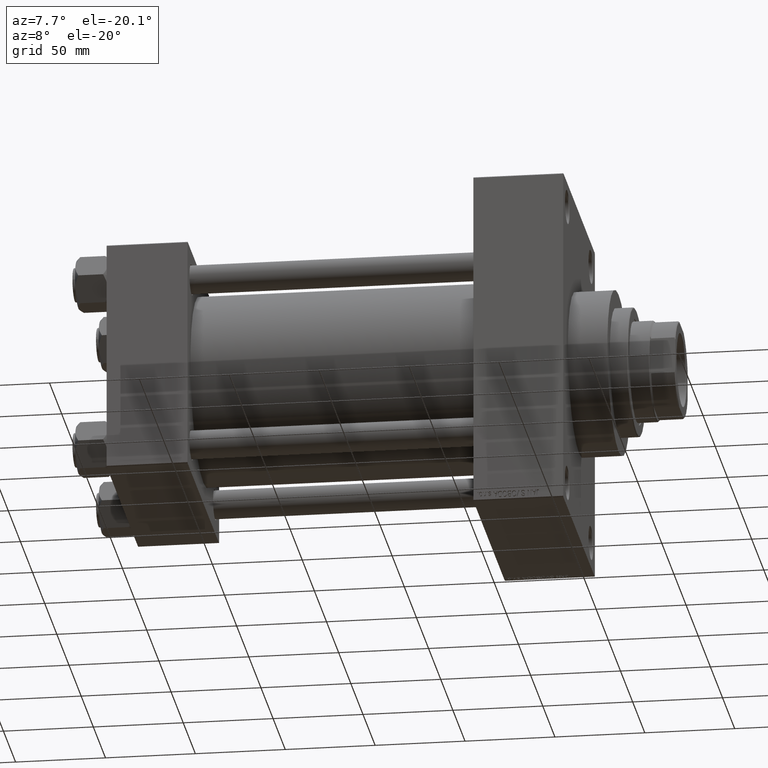
[diagram: clean part render]
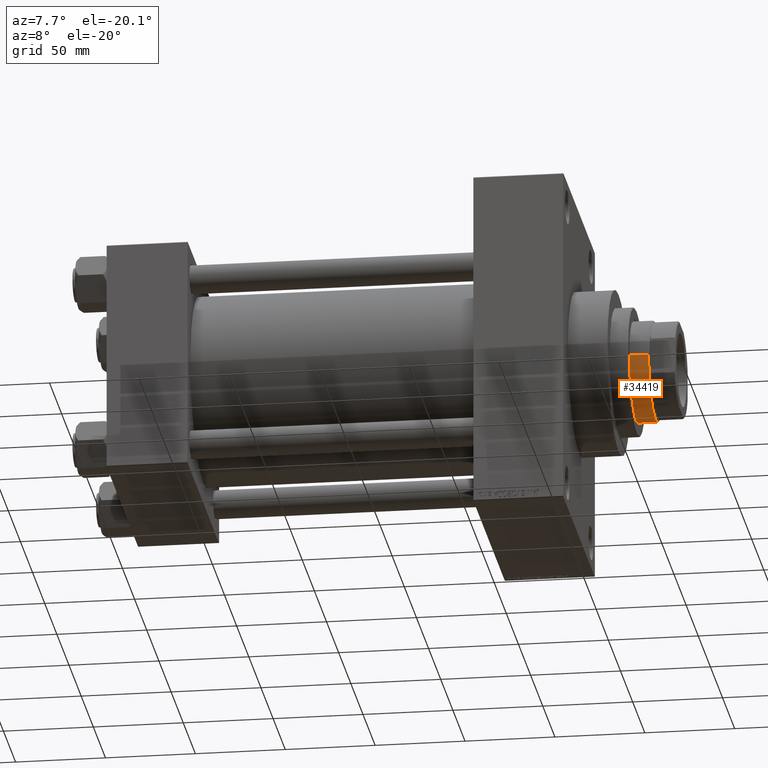
[diagram: same view with one face highlighted and labeled with its STEP entity id]
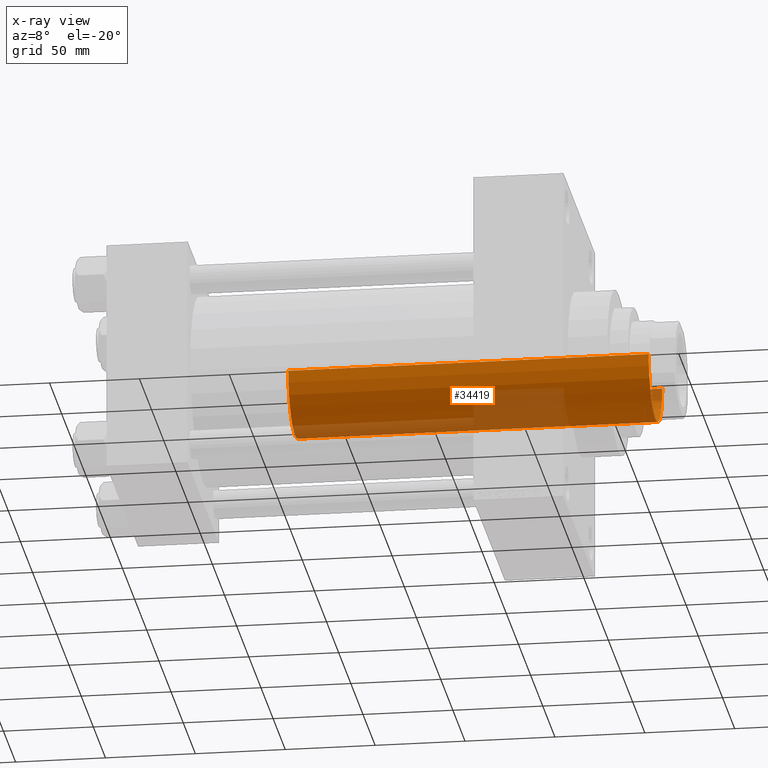
[diagram: x-ray of the same camera — body ghosted, the highlighted face saturated]
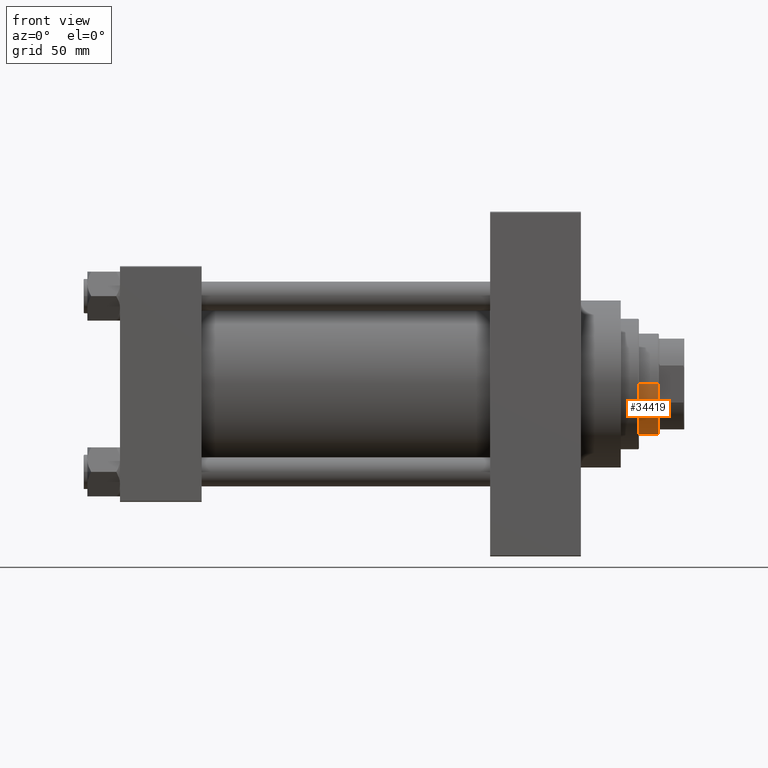
[diagram: same view with one face highlighted and labeled with its STEP entity id]
A machine part, auxiliary view. The second image highlights one B-rep face of the part: STEP entity #34419.
The next image is the same camera in x-ray: the body ghosted, the highlighted face saturated — about 25% of this face is hidden behind the body in this view.
A second angle (front view) of the same face is appended — the face is thin or edge-on in the first view.
In plain terms, the highlighted cylindrical surface (partial cylindrical patch) has radius 28 mm, axis along (-1, 0, 0).
Its self-contained STEP definition (entity closure, byte-faithful):
#465 = EDGE_LOOP ( 'NONE', ( #11093, #3812, #31944, #23120 ) ) ;
#1300 = CARTESIAN_POINT ( 'NONE',  ( -28.00000000000000000, 0.000000000000000000, 252.0000000000000000 ) ) ;
#3812 = ORIENTED_EDGE ( 'NONE', *, *, #32997, .T. ) ;
#4686 = VERTEX_POINT ( 'NONE', #9042 ) ;
#7566 = EDGE_CURVE ( 'NONE', #37630, #44340, #34368, .T. ) ;
#9042 = CARTESIAN_POINT ( 'NONE',  ( 28.00000000000000000, 3.429011037612589276E-15, 251.5000000000000000 ) ) ;
#9594 = DIRECTION ( 'NONE',  ( 1.000000000000000000, 0.000000000000000000, 0.000000000000000000 ) ) ;
#9977 = CARTESIAN_POINT ( 'NONE',  ( -28.00000000000000000, 0.000000000000000000, 251.5000000000000000 ) ) ;
#11093 = ORIENTED_EDGE ( 'NONE', *, *, #18022, .T. ) ;
#11175 = AXIS2_PLACEMENT_3D ( 'NONE', #22546, #26632, #37748 ) ;
#13069 = DIRECTION ( 'NONE',  ( 0.000000000000000000, 0.000000000000000000, -1.000000000000000000 ) ) ;
#14889 = AXIS2_PLACEMENT_3D ( 'NONE', #38815, #28170, #9594 ) ;
#16136 = VECTOR ( 'NONE', #19894, 1000.000000000000000 ) ;
#18022 = EDGE_CURVE ( 'NONE', #37630, #4686, #44891, .T. ) ;
#19894 = DIRECTION ( 'NONE',  ( -0.000000000000000000, -0.000000000000000000, -1.000000000000000000 ) ) ;
#19948 = EDGE_CURVE ( 'NONE', #41582, #44340, #32638, .T. ) ;
#20986 = AXIS2_PLACEMENT_3D ( 'NONE', #42987, #13069, #27784 ) ;
#22420 = CARTESIAN_POINT ( 'NONE',  ( 28.00000000000000000, 3.429011037612589276E-15, 252.0000000000000000 ) ) ;
#22546 = CARTESIAN_POINT ( 'NONE',  ( 0.000000000000000000, 0.000000000000000000, 252.0000000000000000 ) ) ;
#23120 = ORIENTED_EDGE ( 'NONE', *, *, #7566, .F. ) ;
#26632 = DIRECTION ( 'NONE',  ( -0.000000000000000000, -0.000000000000000000, -1.000000000000000000 ) ) ;
#26742 = LINE ( 'NONE', #22420, #36591 ) ;
#27784 = DIRECTION ( 'NONE',  ( 1.000000000000000000, 0.000000000000000000, 0.000000000000000000 ) ) ;
#28170 = DIRECTION ( 'NONE',  ( 0.000000000000000000, 0.000000000000000000, 1.000000000000000000 ) ) ;
#29783 = FACE_OUTER_BOUND ( 'NONE', #465, .T. ) ;
#31944 = ORIENTED_EDGE ( 'NONE', *, *, #19948, .T. ) ;
#32638 = CIRCLE ( 'NONE', #14889, 28.00000000000000000 ) ;
#32997 = EDGE_CURVE ( 'NONE', #4686, #41582, #26742, .T. ) ;
#33175 = CYLINDRICAL_SURFACE ( 'NONE', #11175, 28.00000000000000000 ) ;
#34368 = LINE ( 'NONE', #1300, #16136 ) ;
#34419 = ADVANCED_FACE ( 'NONE', ( #29783 ), #33175, .T. ) ;
#36105 = CARTESIAN_POINT ( 'NONE',  ( -28.00000000000000000, 0.000000000000000000, 51.00000000000000000 ) ) ;
#36591 = VECTOR ( 'NONE', #36900, 1000.000000000000000 ) ;
#36900 = DIRECTION ( 'NONE',  ( -0.000000000000000000, -0.000000000000000000, -1.000000000000000000 ) ) ;
#37630 = VERTEX_POINT ( 'NONE', #9977 ) ;
#37748 = DIRECTION ( 'NONE',  ( -1.000000000000000000, 0.000000000000000000, 0.000000000000000000 ) ) ;
#38815 = CARTESIAN_POINT ( 'NONE',  ( 0.000000000000000000, 0.000000000000000000, 51.00000000000000000 ) ) ;
#41582 = VERTEX_POINT ( 'NONE', #42578 ) ;
#42578 = CARTESIAN_POINT ( 'NONE',  ( 28.00000000000000000, 3.429011037612589276E-15, 51.00000000000000000 ) ) ;
#42987 = CARTESIAN_POINT ( 'NONE',  ( 0.000000000000000000, 0.000000000000000000, 251.5000000000000000 ) ) ;
#44340 = VERTEX_POINT ( 'NONE', #36105 ) ;
#44891 = CIRCLE ( 'NONE', #20986, 28.00000000000000000 ) ;